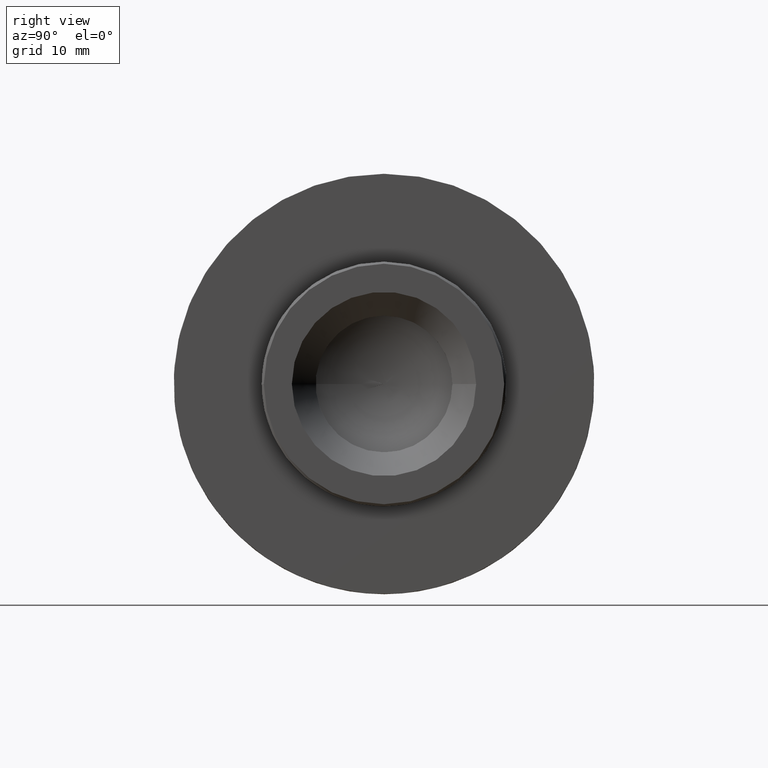
[diagram: clean part render]
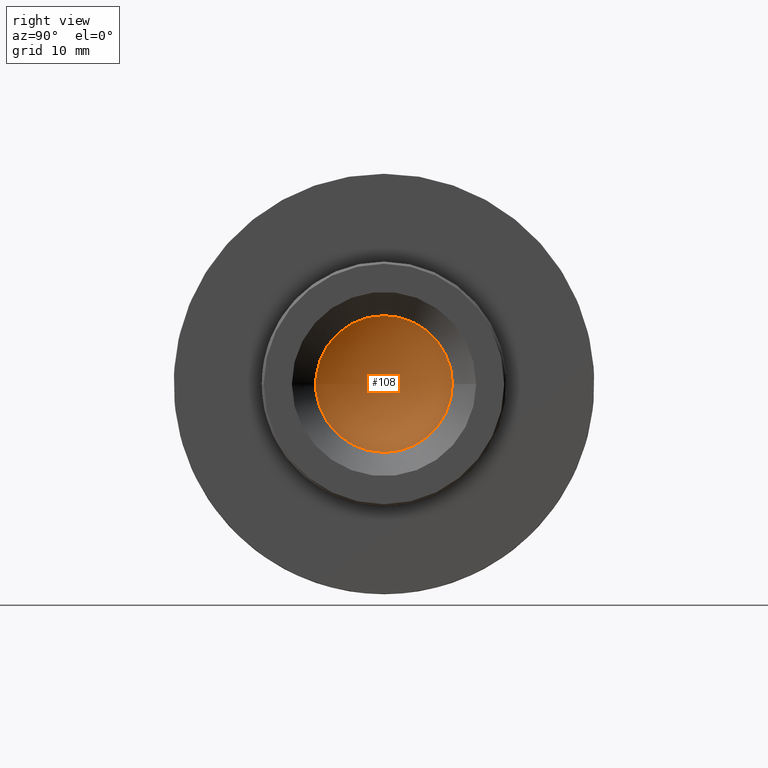
[diagram: same view with one face highlighted and labeled with its STEP entity id]
A machine part, right view. The second image highlights one B-rep face of the part: STEP entity #108.
In plain terms, the highlighted face is a freeform B-spline surface patch.
Its self-contained STEP definition (entity closure, byte-faithful):
#26 = CARTESIAN_POINT ( 'NONE',  ( 7923.427387749414265, -204.0133481054744777, -1.694065894508600678E-18 ) ) ;
#29 = CARTESIAN_POINT ( 'NONE',  ( 7925.486479093689013, -212.8648362616712006, 1.694065894508600678E-18 ) ) ;
#32 = CARTESIAN_POINT ( 'NONE',  ( 7924.753938377556551, -196.6624149685411282, -14.70186627394504164 ) ) ;
#39 = CARTESIAN_POINT ( 'NONE',  ( 7923.986057118371718, -208.9824853522602837, 1.694065894508600678E-18 ) ) ;
#76 = CARTESIAN_POINT ( 'NONE',  ( 7923.427387749412446, -204.0133481054744493, 6.011857508939859769E-11 ) ) ;
#77 = CARTESIAN_POINT ( 'NONE',  ( 7925.917387922367197, -213.5717338463544763, 0.000000000000000000 ) ) ;
#78 = CARTESIAN_POINT ( 'NONE',  ( 7925.917387922355374, -213.5717338463609565, 1.694065894508600678E-18 ) ) ;
#82 = CARTESIAN_POINT ( 'NONE',  ( 7923.986057118370809, -208.9824853522602552, 9.938274493503762130 ) ) ;
#85 = CARTESIAN_POINT ( 'NONE',  ( 7924.753938377453778, -211.3642812424861859, 1.694065894508600678E-18 ) ) ;
#88 = CARTESIAN_POINT ( 'NONE',  ( 7923.427387749406989, -204.8472025372736312, 1.667708863538230890 ) ) ;
#108 = ADVANCED_FACE ( 'NONE', ( #371 ), #556, .F. ) ;
#111 = EDGE_LOOP ( 'NONE', ( #512 ) ) ;
#128 = CARTESIAN_POINT ( 'NONE',  ( 7923.427387749413356, -204.0133481055345612, 1.694065894508600678E-18 ) ) ;
#133 = CARTESIAN_POINT ( 'NONE',  ( 7923.986057118439930, -199.0442108587564292, -9.938274493503818974 ) ) ;
#139 = CARTESIAN_POINT ( 'NONE',  ( 7923.427387749408808, -204.8472025372736596, 1.694065894508600678E-18 ) ) ;
#141 = CARTESIAN_POINT ( 'NONE',  ( 7923.427387749420632, -203.1794936737354078, -1.667708863538286179 ) ) ;
#144 = CARTESIAN_POINT ( 'NONE',  ( 7925.917387922355374, -213.5717338463609565, -19.11677148167850859 ) ) ;
#146 = CARTESIAN_POINT ( 'NONE',  ( 7924.753938377455597, -211.3642812424861575, -14.70186627394498480 ) ) ;
#178 = CARTESIAN_POINT ( 'NONE',  ( 7924.753938377452869, -211.3642812424861575, 14.70186627394498480 ) ) ;
#184 = CARTESIAN_POINT ( 'NONE',  ( 7925.486479093810885, -195.1618599493662600, 17.70297631230499746 ) ) ;
#187 = CARTESIAN_POINT ( 'NONE',  ( 7923.427387749421541, -203.1794936737353794, -1.694065894508600678E-18 ) ) ;
#204 = CIRCLE ( 'NONE', #286, 9.558385740832758160 ) ;
#225 = CARTESIAN_POINT ( 'NONE',  ( 7923.427387749412446, -204.0133481054744493, -6.011857847751812117E-11 ) ) ;
#232 = CARTESIAN_POINT ( 'NONE',  ( 7925.486479093688104, -212.8648362616711722, 17.70297631230494062 ) ) ;
#238 = CARTESIAN_POINT ( 'NONE',  ( 7925.486479093689923, -212.8648362616711722, -17.70297631230494062 ) ) ;
#239 = EDGE_CURVE ( 'NONE', #584, #584, #204, .T. ) ;
#278 = CARTESIAN_POINT ( 'NONE',  ( 7923.986057118440840, -199.0442108587564860, -1.694065894508600678E-18 ) ) ;
#284 = CARTESIAN_POINT ( 'NONE',  ( 7923.528681029413747, -206.5166780875054542, 1.694065894508600678E-18 ) ) ;
#286 = AXIS2_PLACEMENT_3D ( 'NONE', #645, #615, #410 ) ;
#320 = CARTESIAN_POINT ( 'NONE',  ( 7923.427387749412446, -204.0133481055345612, 6.006306732628686335E-11 ) ) ;
#326 = CARTESIAN_POINT ( 'NONE',  ( 7925.917387922486341, -194.4549623646824159, 19.11677148167856188 ) ) ;
#330 = CARTESIAN_POINT ( 'NONE',  ( 7923.528681029448308, -201.5100181235049774, 5.006659964000459873 ) ) ;
#333 = CARTESIAN_POINT ( 'NONE',  ( 7923.427387749409718, -204.8472025372736312, -1.667708863538230890 ) ) ;
#341 = CARTESIAN_POINT ( 'NONE',  ( 7925.486479093689013, -212.8648362616712006, 1.694065894508600678E-18 ) ) ;
#371 = FACE_OUTER_BOUND ( 'NONE', #111, .T. ) ;
#376 = CARTESIAN_POINT ( 'NONE',  ( 7923.427387749415175, -204.0133481055345612, -6.006306393814282172E-11 ) ) ;
#378 = CARTESIAN_POINT ( 'NONE',  ( 7923.986057118373537, -208.9824853522602552, -9.938274493503762130 ) ) ;
#388 = CARTESIAN_POINT ( 'NONE',  ( 7923.528681029449217, -201.5100181235050059, -1.694065894508600678E-18 ) ) ;
#391 = CARTESIAN_POINT ( 'NONE',  ( 7924.753938377453778, -211.3642812424861859, 1.694065894508600678E-18 ) ) ;
#410 = DIRECTION ( 'NONE',  ( -6.876182321983070780E-12, -1.000000000000000000, 0.000000000000000000 ) ) ;
#429 = CARTESIAN_POINT ( 'NONE',  ( 7925.917387922355374, -213.5717338463609565, 1.694065894508600678E-18 ) ) ;
#435 = CARTESIAN_POINT ( 'NONE',  ( 7925.486479093810885, -195.1618599493662600, -17.70297631230499746 ) ) ;
#438 = CARTESIAN_POINT ( 'NONE',  ( 7925.917387922355374, -213.5717338463609565, 19.11677148167850859 ) ) ;
#441 = CARTESIAN_POINT ( 'NONE',  ( 7923.528681029413747, -206.5166780875054542, 1.694065894508600678E-18 ) ) ;
#480 = CARTESIAN_POINT ( 'NONE',  ( 7925.917387922488160, -194.4549623646824443, -1.694065894508600678E-18 ) ) ;
#490 = CARTESIAN_POINT ( 'NONE',  ( 7923.427387749413356, -204.0133481055345612, 1.694065894508600678E-18 ) ) ;
#512 = ORIENTED_EDGE ( 'NONE', *, *, #239, .F. ) ;
#536 = CARTESIAN_POINT ( 'NONE',  ( 7923.528681029414656, -206.5166780875054826, -5.006659964000459873 ) ) ;
#538 = CARTESIAN_POINT ( 'NONE',  ( 7923.528681029448308, -201.5100181235049774, -5.006659964000459873 ) ) ;
#556 =( BOUNDED_SURFACE ( )  B_SPLINE_SURFACE ( 3, 3, ( 
 ( #128, #320, #76, #26, #225, #376, #490 ),
 ( #585, #88, #639, #187, #141, #333, #139 ),
 ( #441, #641, #330, #388, #538, #536, #284 ),
 ( #39, #82, #636, #278, #133, #378, #631 ),
 ( #391, #178, #633, #594, #32, #146, #85 ),
 ( #29, #232, #184, #580, #435, #238, #341 ),
 ( #78, #438, #326, #480, #591, #144, #429 ) ),
 .UNSPECIFIED., .F., .T., .T. ) 
 B_SPLINE_SURFACE_WITH_KNOTS ( ( 4, 1, 1, 1, 4 ),
 ( 4, 3, 4 ),
 ( 0.000000000000000000, 0.2493454765338722900, 0.4986909530677445801, 0.7480364296016168701, 0.9957486123050348636 ),
 ( 0.000000000000000000, 0.5000000000000000000, 1.000000000000000000 ),
 .UNSPECIFIED. ) 
 GEOMETRIC_REPRESENTATION_ITEM ( )  RATIONAL_B_SPLINE_SURFACE ( (
 ( 1.000000000000000000, 0.3333333333333333148, 0.3333333333333333148, 1.000000000000000000, 0.3333333333333333148, 0.3333333333333333148, 1.000000000000000000),
 ( 1.000000000000000000, 0.3333333333333333148, 0.3333333333333333148, 1.000000000000000000, 0.3333333333333333148, 0.3333333333333333148, 1.000000000000000000),
 ( 1.000000000000000000, 0.3333333333333333148, 0.3333333333333333148, 1.000000000000000000, 0.3333333333333333148, 0.3333333333333333148, 1.000000000000000000),
 ( 1.000000000000000000, 0.3333333333333333148, 0.3333333333333333148, 1.000000000000000000, 0.3333333333333333148, 0.3333333333333333148, 1.000000000000000000),
 ( 1.000000000000000000, 0.3333333333333333148, 0.3333333333333333148, 1.000000000000000000, 0.3333333333333333148, 0.3333333333333333148, 1.000000000000000000),
 ( 1.000000000000000000, 0.3333333333333333148, 0.3333333333333333148, 1.000000000000000000, 0.3333333333333333148, 0.3333333333333333148, 1.000000000000000000),
 ( 1.000000000000000000, 0.3333333333333333148, 0.3333333333333333148, 1.000000000000000000, 0.3333333333333333148, 0.3333333333333333148, 1.000000000000000000) ) ) 
 REPRESENTATION_ITEM ( '' )  SURFACE ( )  );
#580 = CARTESIAN_POINT ( 'NONE',  ( 7925.486479093811795, -195.1618599493662316, -1.694065894508600678E-18 ) ) ;
#584 = VERTEX_POINT ( 'NONE', #77 ) ;
#585 = CARTESIAN_POINT ( 'NONE',  ( 7923.427387749408808, -204.8472025372736596, 1.694065894508600678E-18 ) ) ;
#591 = CARTESIAN_POINT ( 'NONE',  ( 7925.917387922486341, -194.4549623646824159, -19.11677148167856188 ) ) ;
#594 = CARTESIAN_POINT ( 'NONE',  ( 7924.753938377555642, -196.6624149685411851, -1.694065894508600678E-18 ) ) ;
#615 = DIRECTION ( 'NONE',  ( -1.000000000000000000, 6.897754332065303667E-12, -0.000000000000000000 ) ) ;
#631 = CARTESIAN_POINT ( 'NONE',  ( 7923.986057118371718, -208.9824853522602837, 1.694065894508600678E-18 ) ) ;
#633 = CARTESIAN_POINT ( 'NONE',  ( 7924.753938377556551, -196.6624149685411282, 14.70186627394504164 ) ) ;
#636 = CARTESIAN_POINT ( 'NONE',  ( 7923.986057118439930, -199.0442108587564292, 9.938274493503818974 ) ) ;
#639 = CARTESIAN_POINT ( 'NONE',  ( 7923.427387749420632, -203.1794936737354078, 1.667708863538286179 ) ) ;
#641 = CARTESIAN_POINT ( 'NONE',  ( 7923.528681029412837, -206.5166780875054826, 5.006659964000459873 ) ) ;
#645 = CARTESIAN_POINT ( 'NONE',  ( 7925.917387922432681, -204.0133481055217146, 0.000000000000000000 ) ) ;